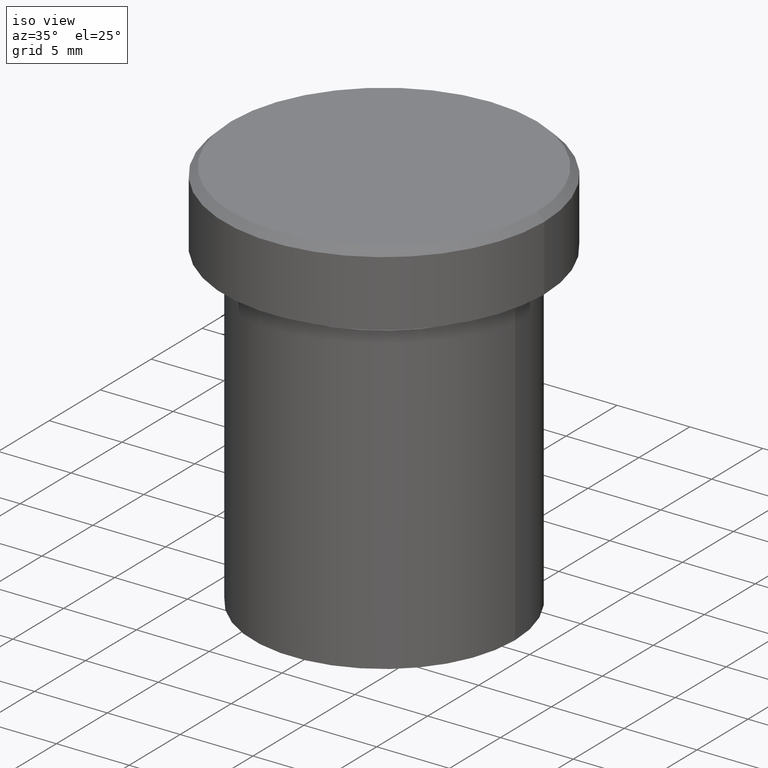
[diagram: clean part render]
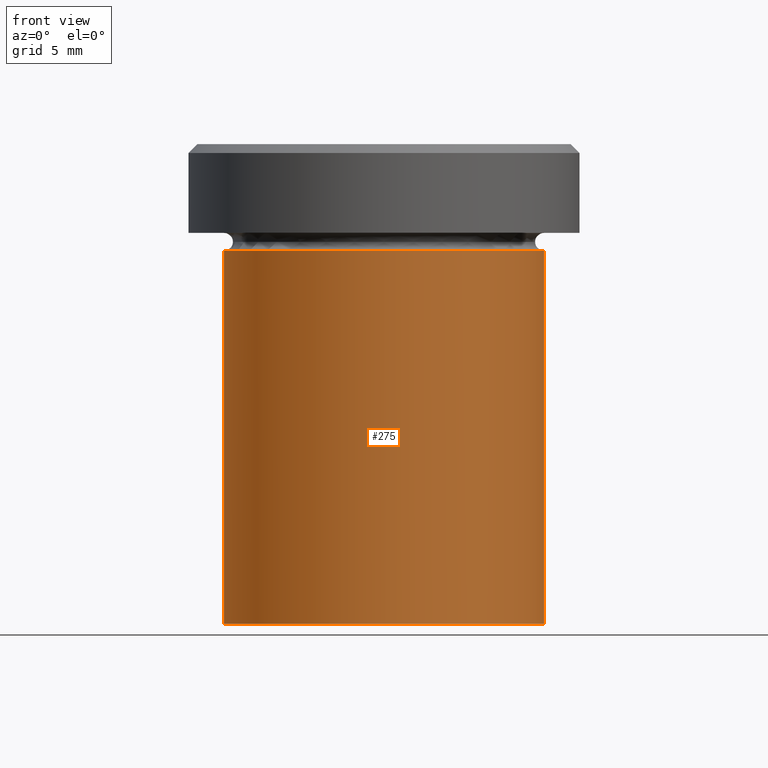
[diagram: tour spotlight — one face highlighted and labeled with its STEP entity id]
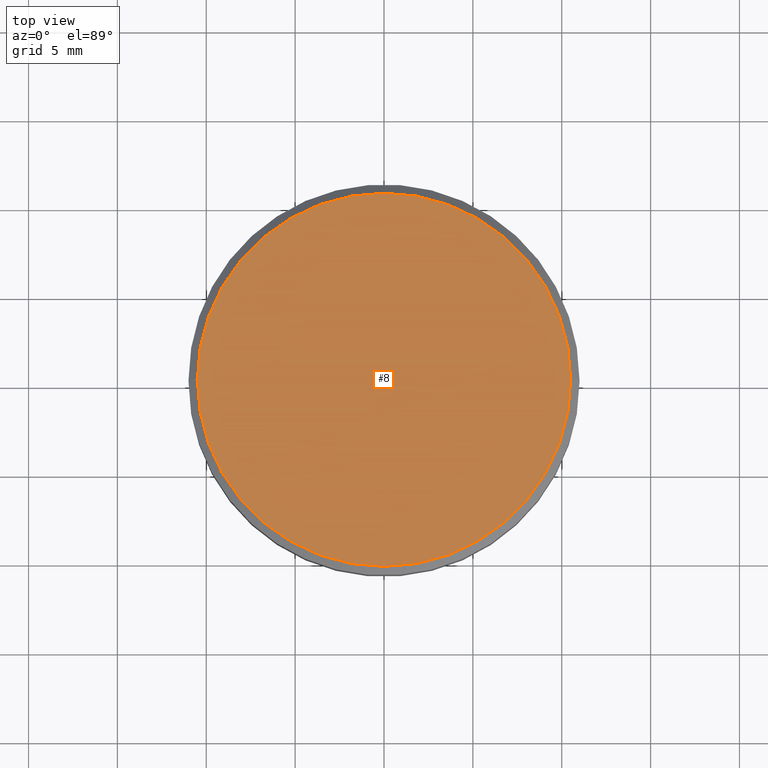
[diagram: tour spotlight — one face highlighted and labeled with its STEP entity id]
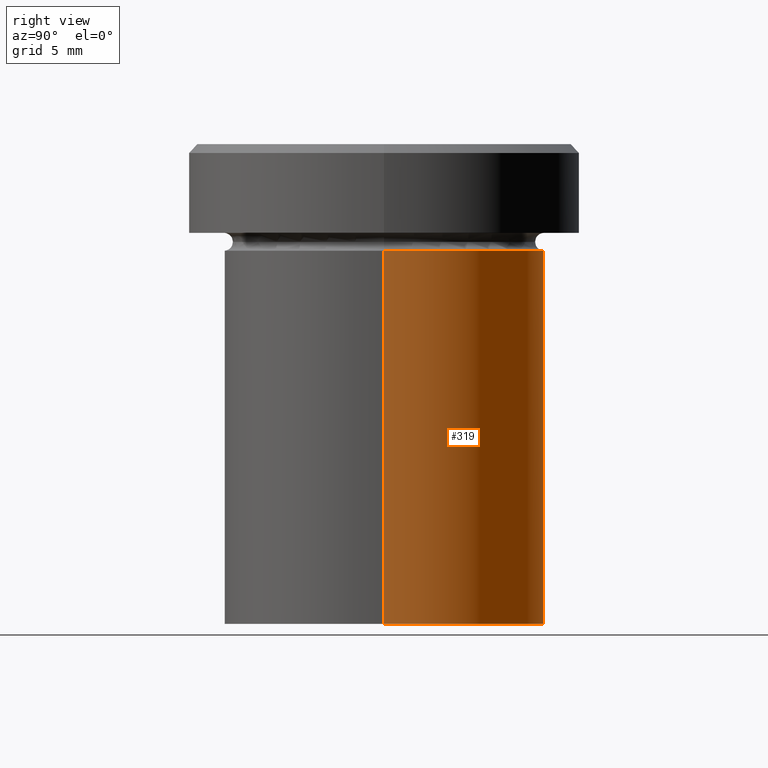
[diagram: tour spotlight — one face highlighted and labeled with its STEP entity id]
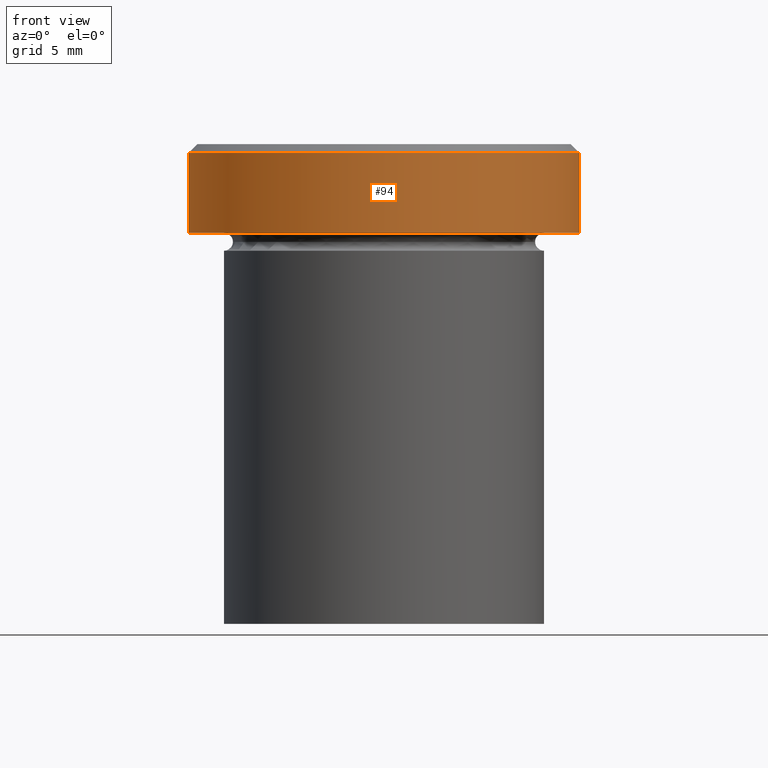
[diagram: tour spotlight — one face highlighted and labeled with its STEP entity id]
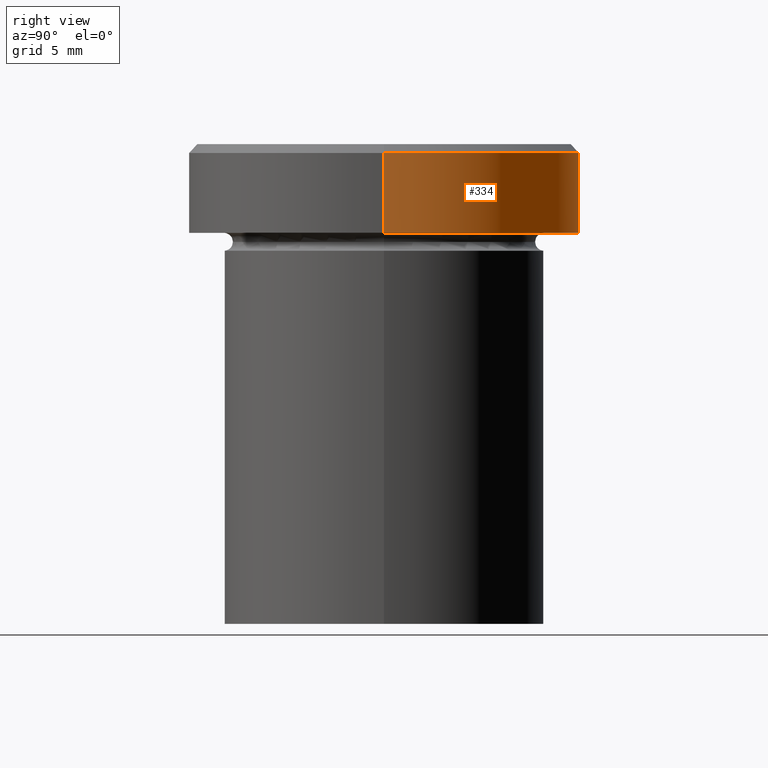
[diagram: tour spotlight — one face highlighted and labeled with its STEP entity id]
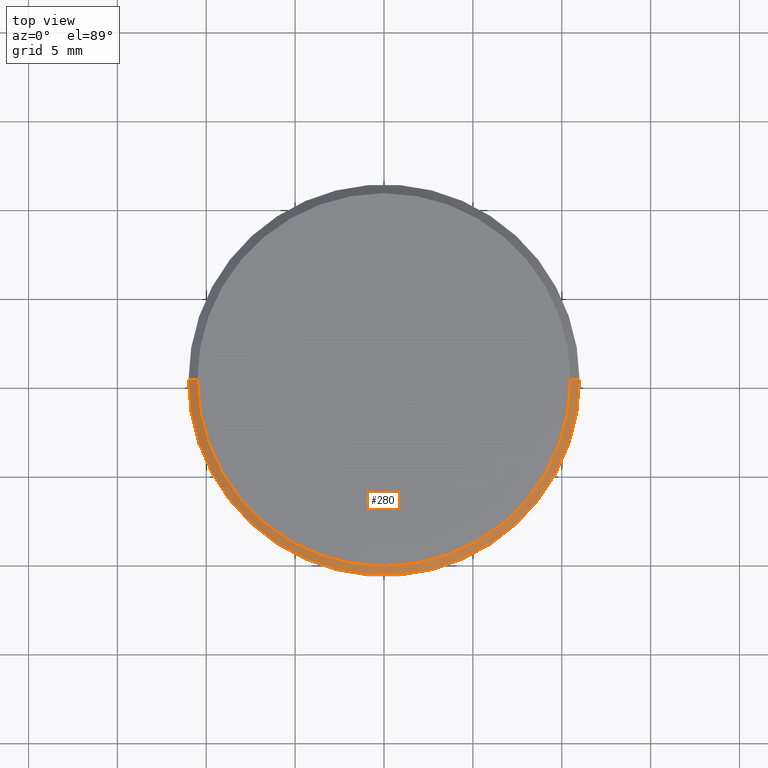
[diagram: tour spotlight — one face highlighted and labeled with its STEP entity id]
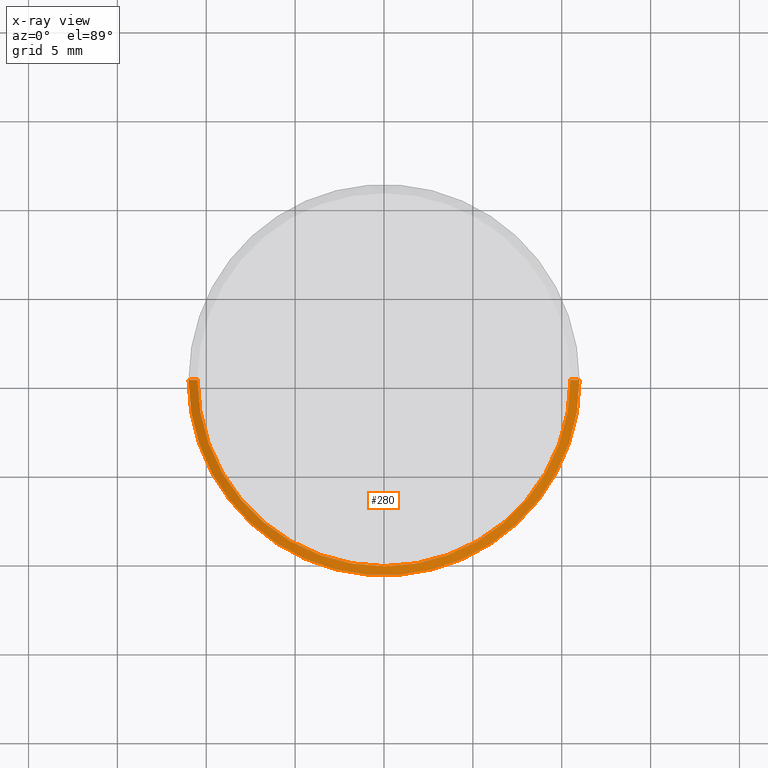
[diagram: x-ray of the same camera — body ghosted, this tour face saturated]
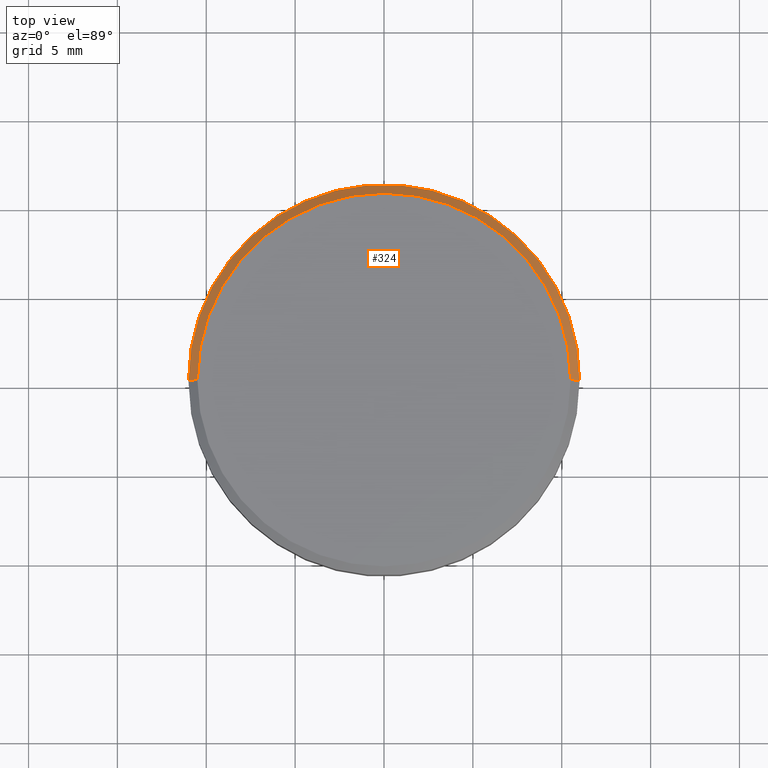
[diagram: tour spotlight — one face highlighted and labeled with its STEP entity id]
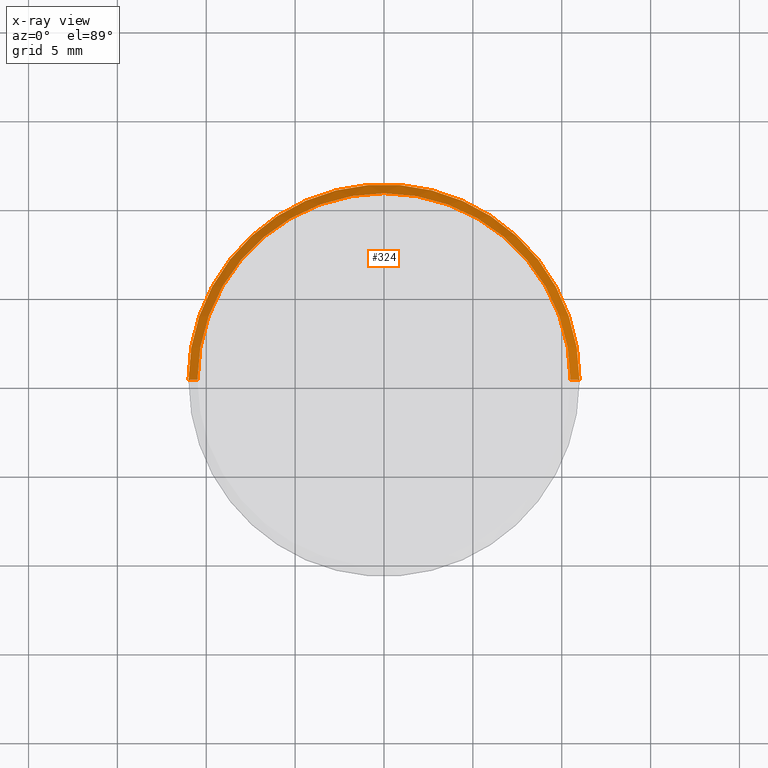
[diagram: x-ray of the same camera — body ghosted, this tour face saturated]
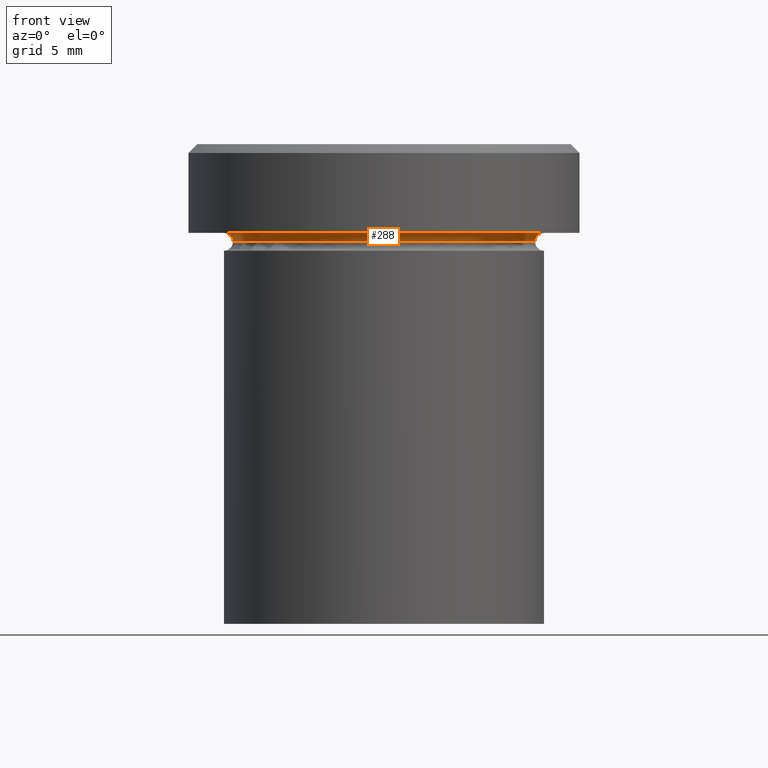
[diagram: tour spotlight — one face highlighted and labeled with its STEP entity id]
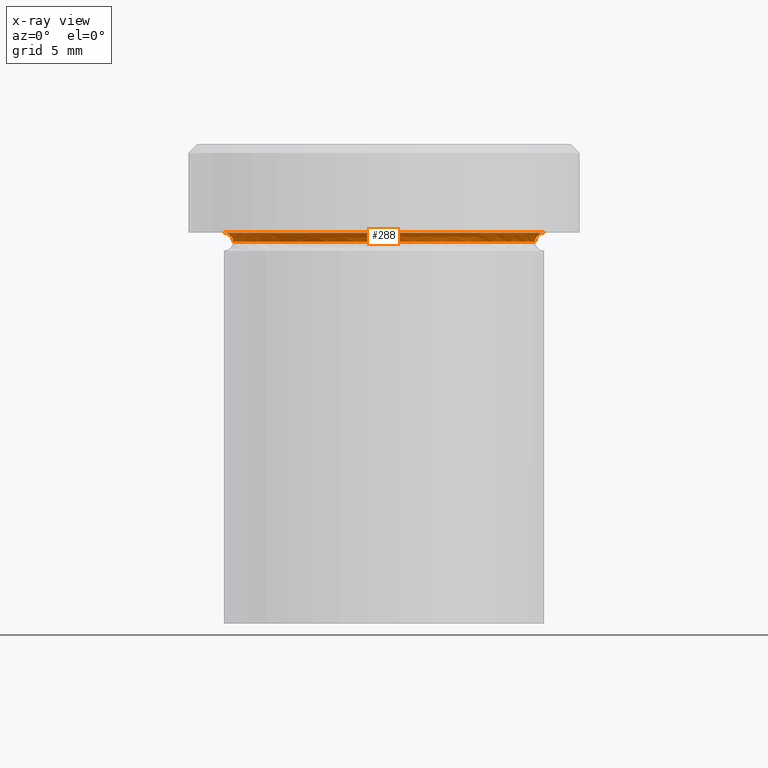
[diagram: x-ray of the same camera — body ghosted, this tour face saturated]
A machine part: a face-by-face anatomy tour. The part has 13 B-rep faces; the first image is the clean iso view, then the 8 largest visible faces are spotlighted one at a time (largest first), each with its STEP entity span.

Face 1 — front view, entity #275. In plain terms, the highlighted cylindrical surface (partial cylindrical patch) has radius 9 mm, axis along (-0, -0, 1).
Definition (entity closure, byte-faithful):
#4 = ORIENTED_EDGE ( 'NONE', *, *, #89, .T. ) ;
#29 = CYLINDRICAL_SURFACE ( 'NONE', #168, 9.000000000000000000 ) ;
#30 = EDGE_CURVE ( 'NONE', #44, #253, #131, .T. ) ;
#44 = VERTEX_POINT ( 'NONE', #104 ) ;
#53 = VERTEX_POINT ( 'NONE', #320 ) ;
#56 = DIRECTION ( 'NONE',  ( -0.000000000000000000, -0.000000000000000000, 1.000000000000000000 ) ) ;
#89 = EDGE_CURVE ( 'NONE', #255, #53, #246, .T. ) ;
#90 = DIRECTION ( 'NONE',  ( -0.000000000000000000, -0.000000000000000000, 1.000000000000000000 ) ) ;
#99 = DIRECTION ( 'NONE',  ( -0.000000000000000000, -0.000000000000000000, 1.000000000000000000 ) ) ;
#104 = CARTESIAN_POINT ( 'NONE',  ( -9.000000000000000000, 1.102182119232617714E-15, -27.00000000000000000 ) ) ;
#106 = ORIENTED_EDGE ( 'NONE', *, *, #215, .T. ) ;
#109 = ORIENTED_EDGE ( 'NONE', *, *, #30, .F. ) ;
#115 = CARTESIAN_POINT ( 'NONE',  ( 0.000000000000000000, 0.000000000000000000, -27.00000000000000000 ) ) ;
#117 = CIRCLE ( 'NONE', #302, 9.000000000000000000 ) ;
#121 = CARTESIAN_POINT ( 'NONE',  ( 0.000000000000000000, 0.000000000000000000, -6.000000000000000000 ) ) ;
#131 = LINE ( 'NONE', #380, #393 ) ;
#168 = AXIS2_PLACEMENT_3D ( 'NONE', #405, #99, #346 ) ;
#170 = DIRECTION ( 'NONE',  ( -0.000000000000000000, -0.000000000000000000, 1.000000000000000000 ) ) ;
#176 = CIRCLE ( 'NONE', #315, 9.000000000000000000 ) ;
#182 = DIRECTION ( 'NONE',  ( 1.000000000000000000, 0.000000000000000000, 0.000000000000000000 ) ) ;
#191 = EDGE_CURVE ( 'NONE', #253, #53, #176, .T. ) ;
#215 = EDGE_CURVE ( 'NONE', #44, #255, #117, .T. ) ;
#223 = EDGE_LOOP ( 'NONE', ( #109, #106, #4, #297 ) ) ;
#246 = LINE ( 'NONE', #336, #333 ) ;
#247 = DIRECTION ( 'NONE',  ( 1.000000000000000000, 0.000000000000000000, 0.000000000000000000 ) ) ;
#253 = VERTEX_POINT ( 'NONE', #338 ) ;
#255 = VERTEX_POINT ( 'NONE', #274 ) ;
#274 = CARTESIAN_POINT ( 'NONE',  ( 9.000000000000000000, 0.000000000000000000, -27.00000000000000000 ) ) ;
#275 = ADVANCED_FACE ( 'NONE', ( #399 ), #29, .T. ) ;
#297 = ORIENTED_EDGE ( 'NONE', *, *, #191, .F. ) ;
#302 = AXIS2_PLACEMENT_3D ( 'NONE', #115, #90, #182 ) ;
#315 = AXIS2_PLACEMENT_3D ( 'NONE', #121, #56, #247 ) ;
#320 = CARTESIAN_POINT ( 'NONE',  ( 9.000000000000000000, 0.000000000000000000, -6.000000000000000000 ) ) ;
#333 = VECTOR ( 'NONE', #404, 1000.000000000000000 ) ;
#336 = CARTESIAN_POINT ( 'NONE',  ( 9.000000000000000000, 0.000000000000000000, 0.000000000000000000 ) ) ;
#338 = CARTESIAN_POINT ( 'NONE',  ( -9.000000000000000000, 1.102182119232617714E-15, -6.000000000000000000 ) ) ;
#346 = DIRECTION ( 'NONE',  ( 1.000000000000000000, 0.000000000000000000, 0.000000000000000000 ) ) ;
#380 = CARTESIAN_POINT ( 'NONE',  ( -9.000000000000000000, 1.102182119232617714E-15, 0.000000000000000000 ) ) ;
#393 = VECTOR ( 'NONE', #170, 1000.000000000000000 ) ;
#399 = FACE_OUTER_BOUND ( 'NONE', #223, .T. ) ;
#404 = DIRECTION ( 'NONE',  ( -0.000000000000000000, -0.000000000000000000, 1.000000000000000000 ) ) ;
#405 = CARTESIAN_POINT ( 'NONE',  ( 0.000000000000000000, 0.000000000000000000, 0.000000000000000000 ) ) ;

Face 2 — top view, entity #8. In plain terms, the highlighted planar face has unit normal (0, -0, 1).
Definition (entity closure, byte-faithful):
#8 = ADVANCED_FACE ( 'NONE', ( #142 ), #201, .T. ) ;
#15 = EDGE_CURVE ( 'NONE', #93, #156, #310, .T. ) ;
#18 = EDGE_CURVE ( 'NONE', #156, #93, #91, .T. ) ;
#20 = CARTESIAN_POINT ( 'NONE',  ( -10.49999999999999822, 0.000000000000000000, 0.000000000000000000 ) ) ;
#25 = CARTESIAN_POINT ( 'NONE',  ( 10.49999999999999822, 1.316495309083404420E-15, 0.000000000000000000 ) ) ;
#73 = DIRECTION ( 'NONE',  ( 0.000000000000000000, -0.000000000000000000, 1.000000000000000000 ) ) ;
#91 = CIRCLE ( 'NONE', #145, 10.49999999999999822 ) ;
#93 = VERTEX_POINT ( 'NONE', #20 ) ;
#137 = AXIS2_PLACEMENT_3D ( 'NONE', #209, #331, #199 ) ;
#142 = FACE_OUTER_BOUND ( 'NONE', #225, .T. ) ;
#145 = AXIS2_PLACEMENT_3D ( 'NONE', #234, #353, #236 ) ;
#156 = VERTEX_POINT ( 'NONE', #25 ) ;
#199 = DIRECTION ( 'NONE',  ( 1.000000000000000000, 0.000000000000000000, 0.000000000000000000 ) ) ;
#201 = PLANE ( 'NONE',  #305 ) ;
#209 = CARTESIAN_POINT ( 'NONE',  ( 0.000000000000000000, 0.000000000000000000, 0.000000000000000000 ) ) ;
#225 = EDGE_LOOP ( 'NONE', ( #378, #376 ) ) ;
#234 = CARTESIAN_POINT ( 'NONE',  ( 0.000000000000000000, 0.000000000000000000, 0.000000000000000000 ) ) ;
#236 = DIRECTION ( 'NONE',  ( 1.000000000000000000, 0.000000000000000000, 0.000000000000000000 ) ) ;
#305 = AXIS2_PLACEMENT_3D ( 'NONE', #354, #73, #327 ) ;
#310 = CIRCLE ( 'NONE', #137, 10.49999999999999822 ) ;
#327 = DIRECTION ( 'NONE',  ( 1.000000000000000000, 0.000000000000000000, 0.000000000000000000 ) ) ;
#331 = DIRECTION ( 'NONE',  ( -0.000000000000000000, -0.000000000000000000, 1.000000000000000000 ) ) ;
#353 = DIRECTION ( 'NONE',  ( -0.000000000000000000, -0.000000000000000000, 1.000000000000000000 ) ) ;
#354 = CARTESIAN_POINT ( 'NONE',  ( 0.000000000000000000, 0.000000000000000000, 0.000000000000000000 ) ) ;
#376 = ORIENTED_EDGE ( 'NONE', *, *, #18, .T. ) ;
#378 = ORIENTED_EDGE ( 'NONE', *, *, #15, .T. ) ;

Face 3 — right view, entity #319. In plain terms, the highlighted cylindrical surface (partial cylindrical patch) has radius 9 mm, axis along (-0, -0, 1).
Definition (entity closure, byte-faithful):
#30 = EDGE_CURVE ( 'NONE', #44, #253, #131, .T. ) ;
#37 = FACE_OUTER_BOUND ( 'NONE', #188, .T. ) ;
#40 = CARTESIAN_POINT ( 'NONE',  ( 0.000000000000000000, 0.000000000000000000, -27.00000000000000000 ) ) ;
#44 = VERTEX_POINT ( 'NONE', #104 ) ;
#53 = VERTEX_POINT ( 'NONE', #320 ) ;
#82 = EDGE_CURVE ( 'NONE', #53, #253, #178, .T. ) ;
#89 = EDGE_CURVE ( 'NONE', #255, #53, #246, .T. ) ;
#104 = CARTESIAN_POINT ( 'NONE',  ( -9.000000000000000000, 1.102182119232617714E-15, -27.00000000000000000 ) ) ;
#131 = LINE ( 'NONE', #380, #393 ) ;
#133 = ORIENTED_EDGE ( 'NONE', *, *, #366, .T. ) ;
#170 = DIRECTION ( 'NONE',  ( -0.000000000000000000, -0.000000000000000000, 1.000000000000000000 ) ) ;
#178 = CIRCLE ( 'NONE', #374, 9.000000000000000000 ) ;
#188 = EDGE_LOOP ( 'NONE', ( #133, #342, #260, #290 ) ) ;
#189 = DIRECTION ( 'NONE',  ( -0.000000000000000000, -0.000000000000000000, 1.000000000000000000 ) ) ;
#198 = CARTESIAN_POINT ( 'NONE',  ( 0.000000000000000000, 0.000000000000000000, 0.000000000000000000 ) ) ;
#212 = DIRECTION ( 'NONE',  ( 1.000000000000000000, 0.000000000000000000, 0.000000000000000000 ) ) ;
#226 = DIRECTION ( 'NONE',  ( -0.000000000000000000, -0.000000000000000000, 1.000000000000000000 ) ) ;
#231 = DIRECTION ( 'NONE',  ( 1.000000000000000000, 0.000000000000000000, 0.000000000000000000 ) ) ;
#243 = AXIS2_PLACEMENT_3D ( 'NONE', #40, #226, #409 ) ;
#246 = LINE ( 'NONE', #336, #333 ) ;
#253 = VERTEX_POINT ( 'NONE', #338 ) ;
#255 = VERTEX_POINT ( 'NONE', #274 ) ;
#260 = ORIENTED_EDGE ( 'NONE', *, *, #82, .F. ) ;
#267 = AXIS2_PLACEMENT_3D ( 'NONE', #198, #189, #231 ) ;
#274 = CARTESIAN_POINT ( 'NONE',  ( 9.000000000000000000, 0.000000000000000000, -27.00000000000000000 ) ) ;
#290 = ORIENTED_EDGE ( 'NONE', *, *, #89, .F. ) ;
#291 = CIRCLE ( 'NONE', #243, 9.000000000000000000 ) ;
#292 = CYLINDRICAL_SURFACE ( 'NONE', #267, 9.000000000000000000 ) ;
#319 = ADVANCED_FACE ( 'NONE', ( #37 ), #292, .T. ) ;
#320 = CARTESIAN_POINT ( 'NONE',  ( 9.000000000000000000, 0.000000000000000000, -6.000000000000000000 ) ) ;
#333 = VECTOR ( 'NONE', #404, 1000.000000000000000 ) ;
#336 = CARTESIAN_POINT ( 'NONE',  ( 9.000000000000000000, 0.000000000000000000, 0.000000000000000000 ) ) ;
#338 = CARTESIAN_POINT ( 'NONE',  ( -9.000000000000000000, 1.102182119232617714E-15, -6.000000000000000000 ) ) ;
#342 = ORIENTED_EDGE ( 'NONE', *, *, #30, .T. ) ;
#366 = EDGE_CURVE ( 'NONE', #255, #44, #291, .T. ) ;
#371 = CARTESIAN_POINT ( 'NONE',  ( 0.000000000000000000, 0.000000000000000000, -6.000000000000000000 ) ) ;
#374 = AXIS2_PLACEMENT_3D ( 'NONE', #371, #401, #212 ) ;
#380 = CARTESIAN_POINT ( 'NONE',  ( -9.000000000000000000, 1.102182119232617714E-15, 0.000000000000000000 ) ) ;
#393 = VECTOR ( 'NONE', #170, 1000.000000000000000 ) ;
#401 = DIRECTION ( 'NONE',  ( -0.000000000000000000, -0.000000000000000000, 1.000000000000000000 ) ) ;
#404 = DIRECTION ( 'NONE',  ( -0.000000000000000000, -0.000000000000000000, 1.000000000000000000 ) ) ;
#409 = DIRECTION ( 'NONE',  ( 1.000000000000000000, 0.000000000000000000, 0.000000000000000000 ) ) ;

Face 4 — front view, entity #94. In plain terms, the highlighted cylindrical surface (partial cylindrical patch) has radius 11 mm, axis along (-0, -0, 1).
Definition (entity closure, byte-faithful):
#7 = DIRECTION ( 'NONE',  ( 0.000000000000000000, 0.000000000000000000, -1.000000000000000000 ) ) ;
#13 = VERTEX_POINT ( 'NONE', #264 ) ;
#23 = DIRECTION ( 'NONE',  ( 1.000000000000000000, 0.000000000000000000, 0.000000000000000000 ) ) ;
#27 = CARTESIAN_POINT ( 'NONE',  ( -11.00000000000000000, 1.347111479062088405E-15, -0.5000000000000038858 ) ) ;
#41 = CIRCLE ( 'NONE', #154, 11.00000000000000000 ) ;
#55 = DIRECTION ( 'NONE',  ( 1.000000000000000000, 0.000000000000000000, 0.000000000000000000 ) ) ;
#58 = EDGE_LOOP ( 'NONE', ( #403, #139, #184, #78 ) ) ;
#78 = ORIENTED_EDGE ( 'NONE', *, *, #362, .T. ) ;
#92 = DIRECTION ( 'NONE',  ( -0.000000000000000000, -0.000000000000000000, 1.000000000000000000 ) ) ;
#94 = ADVANCED_FACE ( 'NONE', ( #279 ), #150, .T. ) ;
#95 = LINE ( 'NONE', #242, #193 ) ;
#98 = CARTESIAN_POINT ( 'NONE',  ( 0.000000000000000000, 0.000000000000000000, -0.5000000000000038858 ) ) ;
#103 = EDGE_CURVE ( 'NONE', #13, #179, #155, .T. ) ;
#128 = VERTEX_POINT ( 'NONE', #301 ) ;
#139 = ORIENTED_EDGE ( 'NONE', *, *, #245, .T. ) ;
#141 = AXIS2_PLACEMENT_3D ( 'NONE', #98, #7, #321 ) ;
#150 = CYLINDRICAL_SURFACE ( 'NONE', #387, 11.00000000000000000 ) ;
#154 = AXIS2_PLACEMENT_3D ( 'NONE', #183, #214, #55 ) ;
#155 = LINE ( 'NONE', #217, #211 ) ;
#179 = VERTEX_POINT ( 'NONE', #219 ) ;
#183 = CARTESIAN_POINT ( 'NONE',  ( 0.000000000000000000, 0.000000000000000000, -5.000000000000000000 ) ) ;
#184 = ORIENTED_EDGE ( 'NONE', *, *, #103, .T. ) ;
#186 = EDGE_CURVE ( 'NONE', #128, #227, #95, .T. ) ;
#193 = VECTOR ( 'NONE', #303, 1000.000000000000000 ) ;
#211 = VECTOR ( 'NONE', #92, 1000.000000000000000 ) ;
#214 = DIRECTION ( 'NONE',  ( -0.000000000000000000, -0.000000000000000000, 1.000000000000000000 ) ) ;
#217 = CARTESIAN_POINT ( 'NONE',  ( 11.00000000000000000, 0.000000000000000000, 0.000000000000000000 ) ) ;
#219 = CARTESIAN_POINT ( 'NONE',  ( 11.00000000000000000, 0.000000000000000000, -0.5000000000000038858 ) ) ;
#227 = VERTEX_POINT ( 'NONE', #27 ) ;
#242 = CARTESIAN_POINT ( 'NONE',  ( -11.00000000000000000, 1.347111479062088405E-15, 0.000000000000000000 ) ) ;
#245 = EDGE_CURVE ( 'NONE', #128, #13, #41, .T. ) ;
#264 = CARTESIAN_POINT ( 'NONE',  ( 11.00000000000000000, 0.000000000000000000, -5.000000000000000000 ) ) ;
#277 = CIRCLE ( 'NONE', #141, 11.00000000000000000 ) ;
#279 = FACE_OUTER_BOUND ( 'NONE', #58, .T. ) ;
#301 = CARTESIAN_POINT ( 'NONE',  ( -11.00000000000000000, 1.347111479062088405E-15, -5.000000000000000000 ) ) ;
#303 = DIRECTION ( 'NONE',  ( -0.000000000000000000, -0.000000000000000000, 1.000000000000000000 ) ) ;
#306 = CARTESIAN_POINT ( 'NONE',  ( 0.000000000000000000, 0.000000000000000000, 0.000000000000000000 ) ) ;
#321 = DIRECTION ( 'NONE',  ( 1.000000000000000000, 0.000000000000000000, 0.000000000000000000 ) ) ;
#362 = EDGE_CURVE ( 'NONE', #179, #227, #277, .T. ) ;
#373 = DIRECTION ( 'NONE',  ( -0.000000000000000000, -0.000000000000000000, 1.000000000000000000 ) ) ;
#387 = AXIS2_PLACEMENT_3D ( 'NONE', #306, #373, #23 ) ;
#403 = ORIENTED_EDGE ( 'NONE', *, *, #186, .F. ) ;

Face 5 — right view, entity #334. In plain terms, the highlighted cylindrical surface (partial cylindrical patch) has radius 11 mm, axis along (-0, -0, 1).
Definition (entity closure, byte-faithful):
#13 = VERTEX_POINT ( 'NONE', #264 ) ;
#27 = CARTESIAN_POINT ( 'NONE',  ( -11.00000000000000000, 1.347111479062088405E-15, -0.5000000000000038858 ) ) ;
#28 = ORIENTED_EDGE ( 'NONE', *, *, #186, .T. ) ;
#33 = AXIS2_PLACEMENT_3D ( 'NONE', #85, #59, #332 ) ;
#59 = DIRECTION ( 'NONE',  ( 0.000000000000000000, 0.000000000000000000, -1.000000000000000000 ) ) ;
#77 = CIRCLE ( 'NONE', #381, 11.00000000000000000 ) ;
#85 = CARTESIAN_POINT ( 'NONE',  ( 0.000000000000000000, 0.000000000000000000, -0.5000000000000038858 ) ) ;
#92 = DIRECTION ( 'NONE',  ( -0.000000000000000000, -0.000000000000000000, 1.000000000000000000 ) ) ;
#95 = LINE ( 'NONE', #242, #193 ) ;
#103 = EDGE_CURVE ( 'NONE', #13, #179, #155, .T. ) ;
#119 = CARTESIAN_POINT ( 'NONE',  ( 0.000000000000000000, 0.000000000000000000, -5.000000000000000000 ) ) ;
#124 = CIRCLE ( 'NONE', #33, 11.00000000000000000 ) ;
#128 = VERTEX_POINT ( 'NONE', #301 ) ;
#155 = LINE ( 'NONE', #217, #211 ) ;
#164 = EDGE_CURVE ( 'NONE', #13, #128, #77, .T. ) ;
#166 = DIRECTION ( 'NONE',  ( 1.000000000000000000, 0.000000000000000000, 0.000000000000000000 ) ) ;
#179 = VERTEX_POINT ( 'NONE', #219 ) ;
#186 = EDGE_CURVE ( 'NONE', #128, #227, #95, .T. ) ;
#193 = VECTOR ( 'NONE', #303, 1000.000000000000000 ) ;
#210 = DIRECTION ( 'NONE',  ( 1.000000000000000000, 0.000000000000000000, 0.000000000000000000 ) ) ;
#211 = VECTOR ( 'NONE', #92, 1000.000000000000000 ) ;
#217 = CARTESIAN_POINT ( 'NONE',  ( 11.00000000000000000, 0.000000000000000000, 0.000000000000000000 ) ) ;
#219 = CARTESIAN_POINT ( 'NONE',  ( 11.00000000000000000, 0.000000000000000000, -0.5000000000000038858 ) ) ;
#221 = EDGE_CURVE ( 'NONE', #227, #179, #124, .T. ) ;
#227 = VERTEX_POINT ( 'NONE', #27 ) ;
#242 = CARTESIAN_POINT ( 'NONE',  ( -11.00000000000000000, 1.347111479062088405E-15, 0.000000000000000000 ) ) ;
#254 = DIRECTION ( 'NONE',  ( -0.000000000000000000, -0.000000000000000000, 1.000000000000000000 ) ) ;
#261 = CARTESIAN_POINT ( 'NONE',  ( 0.000000000000000000, 0.000000000000000000, 0.000000000000000000 ) ) ;
#264 = CARTESIAN_POINT ( 'NONE',  ( 11.00000000000000000, 0.000000000000000000, -5.000000000000000000 ) ) ;
#281 = ORIENTED_EDGE ( 'NONE', *, *, #164, .T. ) ;
#286 = FACE_OUTER_BOUND ( 'NONE', #347, .T. ) ;
#287 = ORIENTED_EDGE ( 'NONE', *, *, #221, .T. ) ;
#301 = CARTESIAN_POINT ( 'NONE',  ( -11.00000000000000000, 1.347111479062088405E-15, -5.000000000000000000 ) ) ;
#303 = DIRECTION ( 'NONE',  ( -0.000000000000000000, -0.000000000000000000, 1.000000000000000000 ) ) ;
#322 = ORIENTED_EDGE ( 'NONE', *, *, #103, .F. ) ;
#323 = AXIS2_PLACEMENT_3D ( 'NONE', #261, #254, #166 ) ;
#332 = DIRECTION ( 'NONE',  ( 1.000000000000000000, 0.000000000000000000, 0.000000000000000000 ) ) ;
#334 = ADVANCED_FACE ( 'NONE', ( #286 ), #355, .T. ) ;
#347 = EDGE_LOOP ( 'NONE', ( #281, #28, #287, #322 ) ) ;
#355 = CYLINDRICAL_SURFACE ( 'NONE', #323, 11.00000000000000000 ) ;
#381 = AXIS2_PLACEMENT_3D ( 'NONE', #119, #396, #210 ) ;
#396 = DIRECTION ( 'NONE',  ( -0.000000000000000000, -0.000000000000000000, 1.000000000000000000 ) ) ;

Face 6 — top view, entity #280. An x-ray twin of the same camera follows (body ghosted, this face saturated) — the face is partly hidden behind the body. In plain terms, the highlighted conical surface has half-angle 45 deg.
Definition (entity closure, byte-faithful):
#2 = DIRECTION ( 'NONE',  ( 0.000000000000000000, 0.000000000000000000, -1.000000000000000000 ) ) ;
#7 = DIRECTION ( 'NONE',  ( 0.000000000000000000, 0.000000000000000000, -1.000000000000000000 ) ) ;
#9 = ORIENTED_EDGE ( 'NONE', *, *, #362, .F. ) ;
#15 = EDGE_CURVE ( 'NONE', #93, #156, #310, .T. ) ;
#20 = CARTESIAN_POINT ( 'NONE',  ( -10.49999999999999822, 0.000000000000000000, 0.000000000000000000 ) ) ;
#25 = CARTESIAN_POINT ( 'NONE',  ( 10.49999999999999822, 1.316495309083404420E-15, 0.000000000000000000 ) ) ;
#26 = VECTOR ( 'NONE', #134, 1000.000000000000114 ) ;
#27 = CARTESIAN_POINT ( 'NONE',  ( -11.00000000000000000, 1.347111479062088405E-15, -0.5000000000000038858 ) ) ;
#48 = CONICAL_SURFACE ( 'NONE', #233, 10.49999999999999822, 0.7853981633974447263 ) ;
#64 = ORIENTED_EDGE ( 'NONE', *, *, #391, .T. ) ;
#93 = VERTEX_POINT ( 'NONE', #20 ) ;
#98 = CARTESIAN_POINT ( 'NONE',  ( 0.000000000000000000, 0.000000000000000000, -0.5000000000000038858 ) ) ;
#100 = CARTESIAN_POINT ( 'NONE',  ( 10.49999999999999822, 1.285879139104720633E-15, 0.000000000000000000 ) ) ;
#105 = CARTESIAN_POINT ( 'NONE',  ( -10.49999999999999822, 0.000000000000000000, 0.000000000000000000 ) ) ;
#107 = FACE_OUTER_BOUND ( 'NONE', #283, .T. ) ;
#126 = ORIENTED_EDGE ( 'NONE', *, *, #15, .F. ) ;
#134 = DIRECTION ( 'NONE',  ( -0.7071067811865451302, 0.000000000000000000, -0.7071067811865500152 ) ) ;
#137 = AXIS2_PLACEMENT_3D ( 'NONE', #209, #331, #199 ) ;
#141 = AXIS2_PLACEMENT_3D ( 'NONE', #98, #7, #321 ) ;
#156 = VERTEX_POINT ( 'NONE', #25 ) ;
#161 = DIRECTION ( 'NONE',  ( -1.000000000000000000, 0.000000000000000000, 0.000000000000000000 ) ) ;
#167 = LINE ( 'NONE', #105, #26 ) ;
#179 = VERTEX_POINT ( 'NONE', #219 ) ;
#194 = DIRECTION ( 'NONE',  ( 0.7071067811865451302, 8.659560562354903276E-17, -0.7071067811865500152 ) ) ;
#196 = CARTESIAN_POINT ( 'NONE',  ( 0.000000000000000000, 0.000000000000000000, 0.000000000000000000 ) ) ;
#199 = DIRECTION ( 'NONE',  ( 1.000000000000000000, 0.000000000000000000, 0.000000000000000000 ) ) ;
#209 = CARTESIAN_POINT ( 'NONE',  ( 0.000000000000000000, 0.000000000000000000, 0.000000000000000000 ) ) ;
#219 = CARTESIAN_POINT ( 'NONE',  ( 11.00000000000000000, 0.000000000000000000, -0.5000000000000038858 ) ) ;
#227 = VERTEX_POINT ( 'NONE', #27 ) ;
#233 = AXIS2_PLACEMENT_3D ( 'NONE', #196, #2, #161 ) ;
#277 = CIRCLE ( 'NONE', #141, 11.00000000000000000 ) ;
#280 = ADVANCED_FACE ( 'NONE', ( #107 ), #48, .T. ) ;
#283 = EDGE_LOOP ( 'NONE', ( #384, #126, #64, #9 ) ) ;
#304 = EDGE_CURVE ( 'NONE', #156, #179, #348, .T. ) ;
#310 = CIRCLE ( 'NONE', #137, 10.49999999999999822 ) ;
#321 = DIRECTION ( 'NONE',  ( 1.000000000000000000, 0.000000000000000000, 0.000000000000000000 ) ) ;
#331 = DIRECTION ( 'NONE',  ( -0.000000000000000000, -0.000000000000000000, 1.000000000000000000 ) ) ;
#341 = VECTOR ( 'NONE', #194, 1000.000000000000114 ) ;
#348 = LINE ( 'NONE', #100, #341 ) ;
#362 = EDGE_CURVE ( 'NONE', #179, #227, #277, .T. ) ;
#384 = ORIENTED_EDGE ( 'NONE', *, *, #304, .F. ) ;
#391 = EDGE_CURVE ( 'NONE', #93, #227, #167, .T. ) ;

Face 7 — top view, entity #324. An x-ray twin of the same camera follows (body ghosted, this face saturated) — the face is partly hidden behind the body. In plain terms, the highlighted conical surface has half-angle 45 deg.
Definition (entity closure, byte-faithful):
#14 = AXIS2_PLACEMENT_3D ( 'NONE', #32, #317, #289 ) ;
#18 = EDGE_CURVE ( 'NONE', #156, #93, #91, .T. ) ;
#20 = CARTESIAN_POINT ( 'NONE',  ( -10.49999999999999822, 0.000000000000000000, 0.000000000000000000 ) ) ;
#25 = CARTESIAN_POINT ( 'NONE',  ( 10.49999999999999822, 1.316495309083404420E-15, 0.000000000000000000 ) ) ;
#26 = VECTOR ( 'NONE', #134, 1000.000000000000114 ) ;
#27 = CARTESIAN_POINT ( 'NONE',  ( -11.00000000000000000, 1.347111479062088405E-15, -0.5000000000000038858 ) ) ;
#32 = CARTESIAN_POINT ( 'NONE',  ( 0.000000000000000000, 0.000000000000000000, 0.000000000000000000 ) ) ;
#33 = AXIS2_PLACEMENT_3D ( 'NONE', #85, #59, #332 ) ;
#59 = DIRECTION ( 'NONE',  ( 0.000000000000000000, 0.000000000000000000, -1.000000000000000000 ) ) ;
#68 = ORIENTED_EDGE ( 'NONE', *, *, #304, .T. ) ;
#85 = CARTESIAN_POINT ( 'NONE',  ( 0.000000000000000000, 0.000000000000000000, -0.5000000000000038858 ) ) ;
#91 = CIRCLE ( 'NONE', #145, 10.49999999999999822 ) ;
#93 = VERTEX_POINT ( 'NONE', #20 ) ;
#100 = CARTESIAN_POINT ( 'NONE',  ( 10.49999999999999822, 1.285879139104720633E-15, 0.000000000000000000 ) ) ;
#105 = CARTESIAN_POINT ( 'NONE',  ( -10.49999999999999822, 0.000000000000000000, 0.000000000000000000 ) ) ;
#114 = CONICAL_SURFACE ( 'NONE', #14, 10.49999999999999822, 0.7853981633974447263 ) ;
#122 = EDGE_LOOP ( 'NONE', ( #293, #68, #165, #197 ) ) ;
#124 = CIRCLE ( 'NONE', #33, 11.00000000000000000 ) ;
#134 = DIRECTION ( 'NONE',  ( -0.7071067811865451302, 0.000000000000000000, -0.7071067811865500152 ) ) ;
#145 = AXIS2_PLACEMENT_3D ( 'NONE', #234, #353, #236 ) ;
#156 = VERTEX_POINT ( 'NONE', #25 ) ;
#165 = ORIENTED_EDGE ( 'NONE', *, *, #221, .F. ) ;
#167 = LINE ( 'NONE', #105, #26 ) ;
#179 = VERTEX_POINT ( 'NONE', #219 ) ;
#194 = DIRECTION ( 'NONE',  ( 0.7071067811865451302, 8.659560562354903276E-17, -0.7071067811865500152 ) ) ;
#197 = ORIENTED_EDGE ( 'NONE', *, *, #391, .F. ) ;
#219 = CARTESIAN_POINT ( 'NONE',  ( 11.00000000000000000, 0.000000000000000000, -0.5000000000000038858 ) ) ;
#221 = EDGE_CURVE ( 'NONE', #227, #179, #124, .T. ) ;
#227 = VERTEX_POINT ( 'NONE', #27 ) ;
#234 = CARTESIAN_POINT ( 'NONE',  ( 0.000000000000000000, 0.000000000000000000, 0.000000000000000000 ) ) ;
#236 = DIRECTION ( 'NONE',  ( 1.000000000000000000, 0.000000000000000000, 0.000000000000000000 ) ) ;
#289 = DIRECTION ( 'NONE',  ( -1.000000000000000000, 0.000000000000000000, 0.000000000000000000 ) ) ;
#293 = ORIENTED_EDGE ( 'NONE', *, *, #18, .F. ) ;
#304 = EDGE_CURVE ( 'NONE', #156, #179, #348, .T. ) ;
#313 = FACE_OUTER_BOUND ( 'NONE', #122, .T. ) ;
#317 = DIRECTION ( 'NONE',  ( 0.000000000000000000, 0.000000000000000000, -1.000000000000000000 ) ) ;
#324 = ADVANCED_FACE ( 'NONE', ( #313 ), #114, .T. ) ;
#332 = DIRECTION ( 'NONE',  ( 1.000000000000000000, 0.000000000000000000, 0.000000000000000000 ) ) ;
#341 = VECTOR ( 'NONE', #194, 1000.000000000000114 ) ;
#348 = LINE ( 'NONE', #100, #341 ) ;
#353 = DIRECTION ( 'NONE',  ( -0.000000000000000000, -0.000000000000000000, 1.000000000000000000 ) ) ;
#391 = EDGE_CURVE ( 'NONE', #93, #227, #167, .T. ) ;

Face 8 — front view, entity #288. An x-ray twin of the same camera follows (body ghosted, this face saturated) — the face is partly hidden behind the body. In plain terms, the highlighted toroidal blend (fillet) surface has major radius 9 mm and minor (blend) radius 0.5 mm.
Definition (entity closure, byte-faithful):
#1 = VERTEX_POINT ( 'NONE', #386 ) ;
#3 = CIRCLE ( 'NONE', #237, 9.000000000000000000 ) ;
#22 = DIRECTION ( 'NONE',  ( -0.000000000000000000, -0.000000000000000000, 1.000000000000000000 ) ) ;
#38 = CARTESIAN_POINT ( 'NONE',  ( 8.499999999999998224, 0.000000000000000000, -5.500000000000000000 ) ) ;
#52 = EDGE_CURVE ( 'NONE', #66, #314, #3, .T. ) ;
#61 = VERTEX_POINT ( 'NONE', #38 ) ;
#63 = DIRECTION ( 'NONE',  ( -1.000000000000000000, -1.224646799147353454E-16, 0.000000000000000000 ) ) ;
#65 = CARTESIAN_POINT ( 'NONE',  ( 9.000000000000000000, 1.102182119232617714E-15, -4.999999999999999112 ) ) ;
#66 = VERTEX_POINT ( 'NONE', #276 ) ;
#70 = DIRECTION ( 'NONE',  ( -0.000000000000000000, -0.000000000000000000, 1.000000000000000000 ) ) ;
#71 = EDGE_CURVE ( 'NONE', #61, #314, #72, .T. ) ;
#72 = CIRCLE ( 'NONE', #298, 0.5000000000000004441 ) ;
#87 = TOROIDAL_SURFACE ( 'NONE', #149, 9.000000000000000000, 0.5000000000000000000 ) ;
#88 = CARTESIAN_POINT ( 'NONE',  ( 9.000000000000000000, 1.102182119232617714E-15, -5.500000000000000000 ) ) ;
#96 = AXIS2_PLACEMENT_3D ( 'NONE', #160, #127, #282 ) ;
#97 = ORIENTED_EDGE ( 'NONE', *, *, #71, .T. ) ;
#116 = DIRECTION ( 'NONE',  ( -1.224646799147353207E-16, 1.000000000000000000, 0.000000000000000000 ) ) ;
#127 = DIRECTION ( 'NONE',  ( -0.000000000000000000, -1.000000000000000000, -0.000000000000000000 ) ) ;
#136 = CARTESIAN_POINT ( 'NONE',  ( 0.000000000000000000, 0.000000000000000000, -5.000000000000000000 ) ) ;
#143 = CIRCLE ( 'NONE', #205, 8.499999999999998224 ) ;
#149 = AXIS2_PLACEMENT_3D ( 'NONE', #379, #190, #383 ) ;
#152 = DIRECTION ( 'NONE',  ( 1.000000000000000000, 0.000000000000000000, 0.000000000000000000 ) ) ;
#160 = CARTESIAN_POINT ( 'NONE',  ( -9.000000000000000000, 0.000000000000000000, -5.500000000000000000 ) ) ;
#181 = CARTESIAN_POINT ( 'NONE',  ( 0.000000000000000000, 0.000000000000000000, -5.500000000000000000 ) ) ;
#190 = DIRECTION ( 'NONE',  ( 0.000000000000000000, 0.000000000000000000, -1.000000000000000000 ) ) ;
#205 = AXIS2_PLACEMENT_3D ( 'NONE', #181, #22, #152 ) ;
#216 = EDGE_LOOP ( 'NONE', ( #248, #97, #220, #229 ) ) ;
#220 = ORIENTED_EDGE ( 'NONE', *, *, #52, .F. ) ;
#222 = FACE_OUTER_BOUND ( 'NONE', #216, .T. ) ;
#229 = ORIENTED_EDGE ( 'NONE', *, *, #402, .F. ) ;
#237 = AXIS2_PLACEMENT_3D ( 'NONE', #136, #70, #262 ) ;
#248 = ORIENTED_EDGE ( 'NONE', *, *, #249, .T. ) ;
#249 = EDGE_CURVE ( 'NONE', #1, #61, #143, .T. ) ;
#250 = CIRCLE ( 'NONE', #96, 0.5000000000000004441 ) ;
#262 = DIRECTION ( 'NONE',  ( -1.000000000000000000, 0.000000000000000000, 0.000000000000000000 ) ) ;
#276 = CARTESIAN_POINT ( 'NONE',  ( -9.000000000000000000, 0.000000000000000000, -4.999999999999999112 ) ) ;
#282 = DIRECTION ( 'NONE',  ( 0.000000000000000000, 0.000000000000000000, -1.000000000000000000 ) ) ;
#288 = ADVANCED_FACE ( 'NONE', ( #222 ), #87, .F. ) ;
#298 = AXIS2_PLACEMENT_3D ( 'NONE', #88, #116, #63 ) ;
#314 = VERTEX_POINT ( 'NONE', #65 ) ;
#379 = CARTESIAN_POINT ( 'NONE',  ( 0.000000000000000000, 0.000000000000000000, -5.500000000000000000 ) ) ;
#383 = DIRECTION ( 'NONE',  ( -1.000000000000000000, 0.000000000000000000, 0.000000000000000000 ) ) ;
#386 = CARTESIAN_POINT ( 'NONE',  ( -8.499999999999998224, 1.071565949253933927E-15, -5.500000000000000000 ) ) ;
#402 = EDGE_CURVE ( 'NONE', #1, #66, #250, .T. ) ;